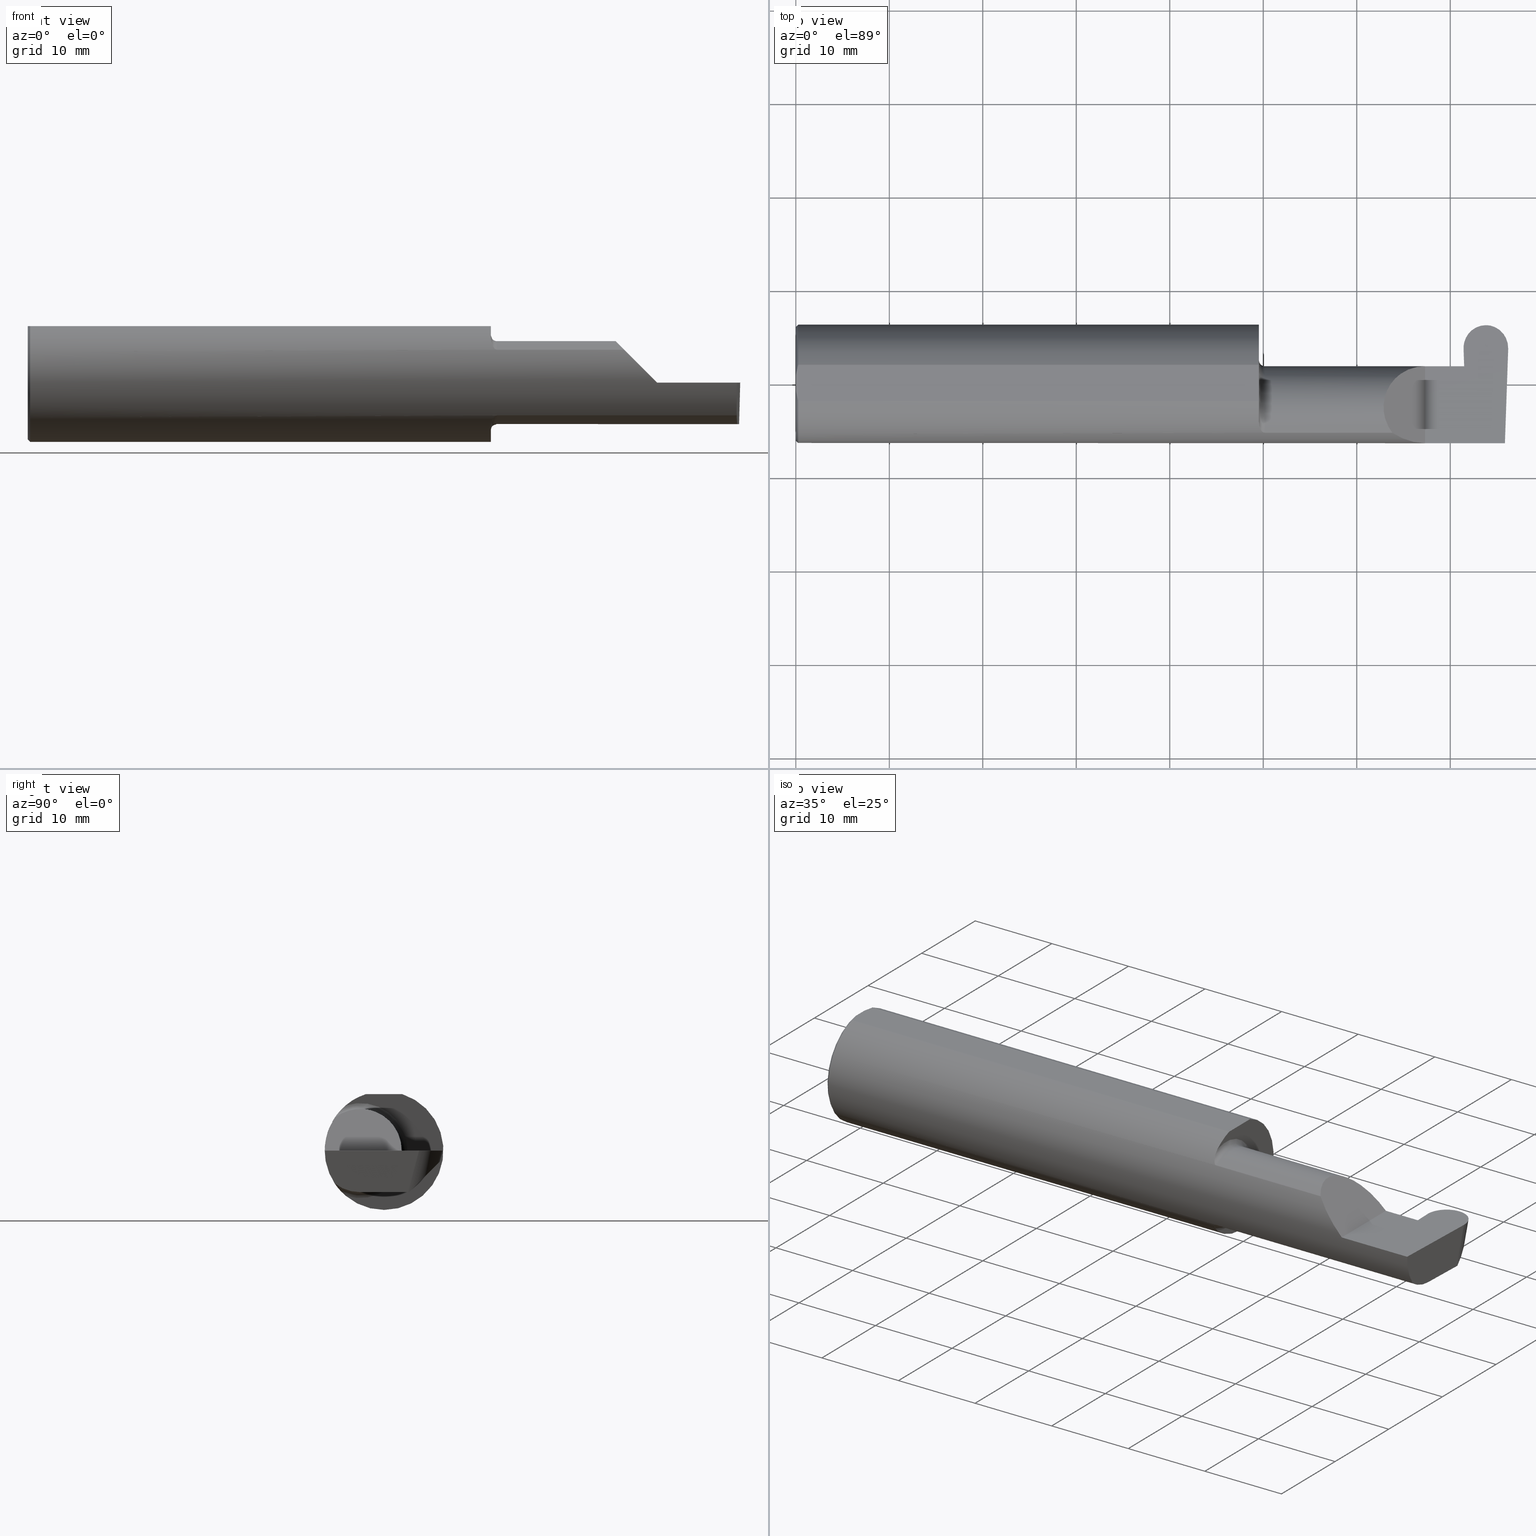
[diagram: canonical four-view strip — front | top / right | iso, engineering-drawing reading convention]
A machine part, canonical four-view strip (front | top / right | iso — engineering-drawing reading convention). The complete STEP part file that produces these views, byte-faithful:
ISO-10303-21;
HEADER;
FILE_DESCRIPTION (( 'STEP AP203' ),
    '1' );
FILE_NAME ('222506-GFR187-16.STEP',
    '2024-06-28T19:24:46',
    ( '' ),
    ( '' ),
    'SwSTEP 2.0',
    'SolidWorks 2024',
    '' );
FILE_SCHEMA (( 'CONFIG_CONTROL_DESIGN' ));
ENDSEC;

DATA;
#1 = ORIENTED_EDGE ( 'NONE', *, *, #420, .F. ) ;
#2 = CARTESIAN_POINT ( 'NONE',  ( 2.809800481473789358, 0.2053034494642216323, 2.322929703798115353E-17 ) ) ;
#3 = PRODUCT_RELATED_PRODUCT_CATEGORY ( 'detail', '', ( #536 ) ) ;
#4 = AXIS2_PLACEMENT_3D ( 'NONE', #278, #549, #441 ) ;
#5 = CARTESIAN_POINT ( 'NONE',  ( 0.000000000000000000, -0.07650098038587520299, 0.2378499999999998671 ) ) ;
#6 = LOCAL_TIME ( 12, 24, 46.00000000000000000, #296 ) ;
#7 = PERSON_AND_ORGANIZATION_ROLE ( 'design_owner' ) ;
#8 = AXIS2_PLACEMENT_3D ( 'NONE', #300, #173, #69 ) ;
#9 = LINE ( 'NONE', #447, #463 ) ;
#10 = DIRECTION ( 'NONE',  ( 1.000000000000000000, 0.000000000000000000, 0.000000000000000000 ) ) ;
#11 = ORIENTED_EDGE ( 'NONE', *, *, #254, .T. ) ;
#12 = DATE_AND_TIME ( #292, #230 ) ;
#13 = CARTESIAN_POINT ( 'NONE',  ( 2.848790630771113275, 0.2471500000000001751, 1.845438088445658575E-17 ) ) ;
#14 = ADVANCED_FACE ( 'NONE', ( #388 ), #372, .T. ) ;
#15 = CARTESIAN_POINT ( 'NONE',  ( 1.975000000000000089, -0.2080850024789290820, -0.1382955322609666915 ) ) ;
#16 = ADVANCED_FACE ( 'NONE', ( #398 ), #72, .T. ) ;
#17 = CARTESIAN_POINT ( 'NONE',  ( 2.903206388851060638, 0.2666316313472230637, 0.07270643800216300412 ) ) ;
#18 = CARTESIAN_POINT ( 'NONE',  ( 1.950000000000000178, -0.1716188362992555061, -0.1820560320165479362 ) ) ;
#19 = VERTEX_POINT ( 'NONE', #341 ) ;
#20 = VECTOR ( 'NONE', #590, 39.37007874015748143 ) ;
#21 = PLANE ( 'NONE',  #339 ) ;
#22 = CARTESIAN_POINT ( 'NONE',  ( 1.956147634408388347, -0.1932733126899460474, -0.1584637047788197695 ) ) ;
#23 = DIRECTION ( 'NONE',  ( 1.000000000000000000, 0.000000000000000000, -0.000000000000000000 ) ) ;
#24 = CARTESIAN_POINT ( 'NONE',  ( 2.988136526189751230, -0.1008500000000000785, -0.1750000000000000722 ) ) ;
#25 = PERSON_AND_ORGANIZATION ( #238, #437 ) ;
#26 = PLANE ( 'NONE',  #147 ) ;
#27 = CARTESIAN_POINT ( 'NONE',  ( 1.950000000000000178, -0.1616050818046604609, -0.1905487340154979614 ) ) ;
#28 = VERTEX_POINT ( 'NONE', #234 ) ;
#29 = DIRECTION ( 'NONE',  ( 0.000000000000000000, 1.000000000000000000, 0.000000000000000000 ) ) ;
#30 = CYLINDRICAL_SURFACE ( 'NONE', #169, 0.2498499999999999888 ) ;
#31 = VERTEX_POINT ( 'NONE', #507 ) ;
#32 = DIRECTION ( 'NONE',  ( 0.02590004391968218217, -0.2587322210431824976, -0.9656017944882975268 ) ) ;
#33 = ADVANCED_FACE ( 'NONE', ( #59 ), #593, .F. ) ;
#34 = LINE ( 'NONE', #475, #42 ) ;
#35 = EDGE_LOOP ( 'NONE', ( #161, #211, #97, #577, #403, #647, #365 ) ) ;
#36 = DIRECTION ( 'NONE',  ( 0.000000000000000000, -1.000000000000000000, 0.000000000000000000 ) ) ;
#37 = EDGE_CURVE ( 'NONE', #691, #153, #449, .T. ) ;
#38 = ORIENTED_EDGE ( 'NONE', *, *, #410, .F. ) ;
#39 = CARTESIAN_POINT ( 'NONE',  ( 1.950367168219774294, -0.1713400252854603845, 0.1819601557798505298 ) ) ;
#40 = DIMENSIONAL_EXPONENTS ( 1.000000000000000000, 0.000000000000000000, 0.000000000000000000, 0.000000000000000000, 0.000000000000000000, 0.000000000000000000, 0.000000000000000000 ) ;
#41 = AXIS2_PLACEMENT_3D ( 'NONE', #51, #54, #656 ) ;
#42 = VECTOR ( 'NONE', #705, 39.37007874015748854 ) ;
#43 = ORIENTED_EDGE ( 'NONE', *, *, #690, .F. ) ;
#44 = EDGE_CURVE ( 'NONE', #155, #28, #186, .T. ) ;
#45 = CARTESIAN_POINT ( 'NONE',  ( 1.952968662030529323, -0.1849684355203378983, 0.1680843977756267538 ) ) ;
#46 = ORIENTED_EDGE ( 'NONE', *, *, #410, .T. ) ;
#47 = DIRECTION ( 'NONE',  ( -0.02590004391968260544, -0.2587322210431824976, -0.9656017944882975268 ) ) ;
#48 = CARTESIAN_POINT ( 'NONE',  ( 2.984795792828450089, -0.2355204011147991883, -0.09701513151466764628 ) ) ;
#49 = ORIENTED_EDGE ( 'NONE', *, *, #96, .T. ) ;
#50 = EDGE_CURVE ( 'NONE', #406, #628, #445, .T. ) ;
#51 = CARTESIAN_POINT ( 'NONE',  ( 0.000000000000000000, 0.000000000000000000, 0.000000000000000000 ) ) ;
#52 = ORIENTED_EDGE ( 'NONE', *, *, #599, .T. ) ;
#53 = DIRECTION ( 'NONE',  ( 0.000000000000000000, 0.000000000000000000, 1.000000000000000000 ) ) ;
#54 = DIRECTION ( 'NONE',  ( -1.000000000000000000, -0.000000000000000000, -0.000000000000000000 ) ) ;
#55 = ADVANCED_FACE ( 'NONE', ( #504 ), #661, .F. ) ;
#56 = VERTEX_POINT ( 'NONE', #512 ) ;
#57 =( BOUNDED_CURVE ( )  B_SPLINE_CURVE ( 3, ( #204, #417, #407, #317 ),
 .UNSPECIFIED., .F., .F. ) 
 B_SPLINE_CURVE_WITH_KNOTS ( ( 4, 4 ),
 ( 4.712388980384687009, 4.718218730468869637 ),
 .UNSPECIFIED. ) 
 CURVE ( )  GEOMETRIC_REPRESENTATION_ITEM ( )  RATIONAL_B_SPLINE_CURVE ( ( 1.000000000000000000, 0.9999971678365016103, 0.9999971678365016103, 1.000000000000000000 ) ) 
 REPRESENTATION_ITEM ( '' )  );
#58 = CARTESIAN_POINT ( 'NONE',  ( 2.906528048425327526, 0.2471499999999999808, 0.000000000000000000 ) ) ;
#59 = FACE_OUTER_BOUND ( 'NONE', #584, .T. ) ;
#60 = CARTESIAN_POINT ( 'NONE',  ( 2.803339167728504666, 0.07414999999999977165, 0.000000000000000000 ) ) ;
#61 = CC_DESIGN_DATE_AND_TIME_ASSIGNMENT ( #12, #675, ( #89 ) ) ;
#62 = CIRCLE ( 'NONE', #41, 0.2398500000000001742 ) ;
#63 = LINE ( 'NONE', #177, #241 ) ;
#64 = CALENDAR_DATE ( 2024, 28, 6 ) ;
#65 = EDGE_CURVE ( 'NONE', #253, #423, #337, .T. ) ;
#66 = AXIS2_PLACEMENT_3D ( 'NONE', #134, #10, #563 ) ;
#67 = DIRECTION ( 'NONE',  ( -0.02590004391968260891, -0.2587322210431824421, -0.9656017944882975268 ) ) ;
#68 = MANIFOLD_SOLID_BREP ( 'Radii', #198 ) ;
#69 = DIRECTION ( 'NONE',  ( -0.03489949670249512664, -0.9993908270190959842, 0.000000000000000000 ) ) ;
#70 = APPROVAL_DATE_TIME ( #400, #135 ) ;
#71 = DIRECTION ( 'NONE',  ( -1.000000000000000000, -1.981473217010842137E-17, -0.000000000000000000 ) ) ;
#72 = PLANE ( 'NONE',  #503 ) ;
#73 = DATE_TIME_ROLE ( 'creation_date' ) ;
#74 = ADVANCED_FACE ( 'NONE', ( #180 ), #560, .F. ) ;
#75 = CARTESIAN_POINT ( 'NONE',  ( 2.959374149763076556, 0.2343807619371274797, -0.04644357521104084535 ) ) ;
#76 = DIRECTION ( 'NONE',  ( 0.000000000000000000, -0.7071067811865514585, 0.7071067811865435759 ) ) ;
#77 = AXIS2_PLACEMENT_3D ( 'NONE', #175, #648, #554 ) ;
#78 = CC_DESIGN_APPROVAL ( #408, ( #127 ) ) ;
#79 = DIRECTION ( 'NONE',  ( -0.7071067811865511255, 0.000000000000000000, 0.7071067811865439090 ) ) ;
#80 = CARTESIAN_POINT ( 'NONE',  ( 2.985032866776429650, -0.2080850024789289987, -0.1382955322609668025 ) ) ;
#81 = ORIENTED_EDGE ( 'NONE', *, *, #242, .F. ) ;
#82 = FACE_OUTER_BOUND ( 'NONE', #465, .T. ) ;
#83 = CARTESIAN_POINT ( 'NONE',  ( 2.814380460850576249, 0.07414999999999977165, 0.000000000000000000 ) ) ;
#84 = ORIENTED_EDGE ( 'NONE', *, *, #141, .F. ) ;
#85 = DIRECTION ( 'NONE',  ( -1.000000000000000000, -1.981473217010842137E-17, -0.000000000000000000 ) ) ;
#86 = ORIENTED_EDGE ( 'NONE', *, *, #676, .F. ) ;
#87 = AXIS2_PLACEMENT_3D ( 'NONE', #352, #682, #29 ) ;
#88 = CARTESIAN_POINT ( 'NONE',  ( 4.499279347985562423E-32, -0.2498499999999999610, 3.673940397442054938E-16 ) ) ;
#89 = SECURITY_CLASSIFICATION ( '', '', #446 ) ;
#90 = CARTESIAN_POINT ( 'NONE',  ( 2.811741978320692059, 0.1497062540083303195, 0.000000000000000000 ) ) ;
#91 = ORIENTED_EDGE ( 'NONE', *, *, #497, .F. ) ;
#92 = APPLICATION_CONTEXT ( 'configuration controlled 3d designs of mechanical parts and assemblies' ) ;
#93 = DIRECTION ( 'NONE',  ( 0.000000000000000000, -1.000000000000000000, 1.223176342469858371E-16 ) ) ;
#94 = EDGE_LOOP ( 'NONE', ( #309, #323, #281, #703, #331, #223 ) ) ;
#95 = LINE ( 'NONE', #88, #20 ) ;
#96 = EDGE_CURVE ( 'NONE', #644, #452, #131, .T. ) ;
#97 = ORIENTED_EDGE ( 'NONE', *, *, #413, .T. ) ;
#98 = CARTESIAN_POINT ( 'NONE',  ( 1.950000000000000178, -0.1008500000000000368, 0.000000000000000000 ) ) ;
#99 = AXIS2_PLACEMENT_3D ( 'NONE', #677, #71, #663 ) ;
#100 = AXIS2_PLACEMENT_3D ( 'NONE', #384, #76, #395 ) ;
#101 = ORIENTED_EDGE ( 'NONE', *, *, #469, .T. ) ;
#102 = CARTESIAN_POINT ( 'NONE',  ( 2.824252866266283135, -0.1210320425578234466, -0.1750000000000000722 ) ) ;
#103 = DIRECTION ( 'NONE',  ( 0.000000000000000000, 0.000000000000000000, 1.000000000000000000 ) ) ;
#104 = EDGE_CURVE ( 'NONE', #452, #19, #63, .T. ) ;
#105 = ORIENTED_EDGE ( 'NONE', *, *, #494, .F. ) ;
#106 = LINE ( 'NONE', #436, #435 ) ;
#107 = ORIENTED_EDGE ( 'NONE', *, *, #50, .F. ) ;
#108 = CARTESIAN_POINT ( 'NONE',  ( 2.816530679450678587, 0.1001024549918554940, -0.1750000000000001277 ) ) ;
#109 =( BOUNDED_CURVE ( )  B_SPLINE_CURVE ( 3, ( #80, #48, #405, #678 ),
 .UNSPECIFIED., .F., .T. ) 
 B_SPLINE_CURVE_WITH_KNOTS ( ( 4, 4 ),
 ( 6.160376845738953833, 6.746954780470612256 ),
 .UNSPECIFIED. ) 
 CURVE ( )  GEOMETRIC_REPRESENTATION_ITEM ( )  RATIONAL_B_SPLINE_CURVE ( ( 1.000000000000000000, 0.9715321379117538569, 0.9715321379117538569, 1.000000000000000000 ) ) 
 REPRESENTATION_ITEM ( '' )  );
#110 = EDGE_CURVE ( 'NONE', #427, #227, #702, .T. ) ;
#111 = CARTESIAN_POINT ( 'NONE',  ( 2.962893989228886138, 0.2471500000000001196, -6.982753567311735255E-18 ) ) ;
#112 = AXIS2_PLACEMENT_3D ( 'NONE', #524, #520, #409 ) ;
#113 = ORIENTED_EDGE ( 'NONE', *, *, #114, .T. ) ;
#114 = EDGE_CURVE ( 'NONE', #658, #592, #567, .T. ) ;
#115 = DIRECTION ( 'NONE',  ( -1.981473217010842137E-17, 1.000000000000000000, 0.000000000000000000 ) ) ;
#116 = DESIGN_CONTEXT ( 'detailed design', #92, 'design' ) ;
#117 = CARTESIAN_POINT ( 'NONE',  ( 0.000000000000000000, 0.2498499999999998500, 0.2378499999999998671 ) ) ;
#118 = ORIENTED_EDGE ( 'NONE', *, *, #65, .F. ) ;
#119 = DIRECTION ( 'NONE',  ( 1.000000000000000000, -0.000000000000000000, -0.000000000000000000 ) ) ;
#120 = EDGE_CURVE ( 'NONE', #363, #56, #523, .T. ) ;
#121 = ADVANCED_FACE ( 'NONE', ( #205 ), #255, .F. ) ;
#122 = DIRECTION ( 'NONE',  ( 1.000000000000000000, 1.981473217010842137E-17, 0.000000000000000000 ) ) ;
#123 = DIRECTION ( 'NONE',  ( 1.000000000000000000, 0.000000000000000000, 0.000000000000000000 ) ) ;
#124 = CARTESIAN_POINT ( 'NONE',  ( 2.817597862438286249, -0.1008500000000000368, -0.1750000000000000444 ) ) ;
#125 = AXIS2_PLACEMENT_3D ( 'NONE', #632, #47, #156 ) ;
#126 = DIRECTION ( 'NONE',  ( 1.981473217010842445E-17, -1.000000000000000000, 0.000000000000000000 ) ) ;
#127 = PRODUCT_DEFINITION_FORMATION_WITH_SPECIFIED_SOURCE ( 'ANY', '', #536, .NOT_KNOWN. ) ;
#128 = CARTESIAN_POINT ( 'NONE',  ( 1.962579853086619197, -0.2024300470081734915, -0.1464774911482684683 ) ) ;
#129 = PERSON_AND_ORGANIZATION_ROLE ( 'creator' ) ;
#130 = DIRECTION ( 'NONE',  ( 0.000000000000000000, 0.000000000000000000, -1.000000000000000000 ) ) ;
#131 = LINE ( 'NONE', #610, #570 ) ;
#132 = CALENDAR_DATE ( 2024, 28, 6 ) ;
#133 = CARTESIAN_POINT ( 'NONE',  ( 2.803232562456845933, 0.07404339472834127467, -0.006107411922952280664 ) ) ;
#134 = CARTESIAN_POINT ( 'NONE',  ( 0.000000000000000000, 0.000000000000000000, 0.000000000000000000 ) ) ;
#135 = APPROVAL ( #183, 'UNSPECIFIED' ) ;
#136 = VECTOR ( 'NONE', #450, 39.37007874015748854 ) ;
#137 = DIRECTION ( 'NONE',  ( -1.224646799147351975E-16, 0.000000000000000000, -1.000000000000000000 ) ) ;
#138 = DIRECTION ( 'NONE',  ( 1.000000000000000000, 1.981473217010842137E-17, 0.000000000000000000 ) ) ;
#139 = ORIENTED_EDGE ( 'NONE', *, *, #585, .F. ) ;
#140 = CARTESIAN_POINT ( 'NONE',  ( 0.002005502345409059580, 0.04647171987093979412, 0.2378499999999998671 ) ) ;
#141 = EDGE_CURVE ( 'NONE', #265, #687, #355, .T. ) ;
#142 = ORIENTED_EDGE ( 'NONE', *, *, #444, .T. ) ;
#143 = CYLINDRICAL_SURFACE ( 'NONE', #229, 0.1750000000000000444 ) ;
#144 = EDGE_CURVE ( 'NONE', #393, #533, #498, .T. ) ;
#145 = FACE_OUTER_BOUND ( 'NONE', #580, .T. ) ;
#146 = ORIENTED_EDGE ( 'NONE', *, *, #247, .T. ) ;
#147 = AXIS2_PLACEMENT_3D ( 'NONE', #562, #569, #23 ) ;
#148 = FACE_OUTER_BOUND ( 'NONE', #666, .T. ) ;
#149 = LOCAL_TIME ( 12, 24, 46.00000000000000000, #424 ) ;
#150 = CARTESIAN_POINT ( 'NONE',  ( 2.816292363343102068, 0.07056399972053260805, -0.1057442486376092144 ) ) ;
#151 = ORIENTED_EDGE ( 'NONE', *, *, #199, .F. ) ;
#152 = DIRECTION ( 'NONE',  ( 0.000000000000000000, 0.9659258262890682012, -0.2588190451025210725 ) ) ;
#153 = VERTEX_POINT ( 'NONE', #425 ) ;
#154 = CARTESIAN_POINT ( 'NONE',  ( 1.950000000000000178, -0.1616050818046604609, 0.1905487340154979614 ) ) ;
#155 = VERTEX_POINT ( 'NONE', #459 ) ;
#156 = DIRECTION ( 'NONE',  ( 0.000000000000000000, 0.9659258262890682012, -0.2588190451025210725 ) ) ;
#157 = VECTOR ( 'NONE', #164, 39.37007874015748854 ) ;
#158 = ORIENTED_EDGE ( 'NONE', *, *, #297, .T. ) ;
#159 = CALENDAR_DATE ( 2024, 28, 6 ) ;
#160 = CARTESIAN_POINT ( 'NONE',  ( 2.905842309999999706, 0.2348220781727736184, -0.04600225897539471365 ) ) ;
#161 = ORIENTED_EDGE ( 'NONE', *, *, #624, .T. ) ;
#162 = EDGE_CURVE ( 'NONE', #378, #485, #343, .T. ) ;
#163 = UNCERTAINTY_MEASURE_WITH_UNIT (LENGTH_MEASURE( 1.000000000000000082E-05 ), #611, 'distance_accuracy_value', 'NONE');
#164 = DIRECTION ( 'NONE',  ( -0.0003154085283454421441, 0.9999999502587288980, -1.223178646569383192E-16 ) ) ;
#165 = EDGE_CURVE ( 'NONE', #533, #525, #646, .T. ) ;
#166 = ORIENTED_EDGE ( 'NONE', *, *, #104, .T. ) ;
#167 = CARTESIAN_POINT ( 'NONE',  ( 2.600434159100402987, -0.2498499999999999610, 0.04956584089959713973 ) ) ;
#168 = CARTESIAN_POINT ( 'NONE',  ( 2.995191146414767136, 0.1058243371481696476, -0.1750000000000001277 ) ) ;
#169 = AXIS2_PLACEMENT_3D ( 'NONE', #595, #202, #103 ) ;
#170 = ORIENTED_EDGE ( 'NONE', *, *, #280, .F. ) ;
#171 = PLANE ( 'NONE',  #77 ) ;
#172 = LINE ( 'NONE', #559, #299 ) ;
#173 = DIRECTION ( 'NONE',  ( -0.9992386149554828290, 0.03489418134010782713, 0.01745240643728358798 ) ) ;
#174 = ORIENTED_EDGE ( 'NONE', *, *, #367, .T. ) ;
#175 = CARTESIAN_POINT ( 'NONE',  ( 0.000000000000000000, 0.000000000000000000, 0.000000000000000000 ) ) ;
#176 = CARTESIAN_POINT ( 'NONE',  ( 3.001884138526210499, 0.2053034494642216323, -1.175766972083629841E-17 ) ) ;
#177 = CARTESIAN_POINT ( 'NONE',  ( 2.999942641679308242, 0.1497062540083303195, 0.000000000000000000 ) ) ;
#178 = DATE_AND_TIME ( #188, #623 ) ;
#179 = AXIS2_PLACEMENT_3D ( 'NONE', #655, #659, #385 ) ;
#180 = FACE_OUTER_BOUND ( 'NONE', #492, .T. ) ;
#181 = AXIS2_PLACEMENT_3D ( 'NONE', #224, #53, #123 ) ;
#182 = VERTEX_POINT ( 'NONE', #571 ) ;
#183 = APPROVAL_STATUS ( 'not_yet_approved' ) ;
#184 = CARTESIAN_POINT ( 'NONE',  ( 2.905842309999999706, 0.2348220781727736184, -0.04600225897539471365 ) ) ;
#185 =( BOUNDED_CURVE ( )  B_SPLINE_CURVE ( 3, ( #282, #13, #2, #541 ),
 .UNSPECIFIED., .F., .T. ) 
 B_SPLINE_CURVE_WITH_KNOTS ( ( 4, 4 ),
 ( 3.045231736429744540, 4.645220385064936508 ),
 .UNSPECIFIED. ) 
 CURVE ( )  GEOMETRIC_REPRESENTATION_ITEM ( )  RATIONAL_B_SPLINE_CURVE ( ( 1.000000000000000000, 0.7978071872141907495, 0.7978071872141907495, 1.000000000000000000 ) ) 
 REPRESENTATION_ITEM ( '' )  );
#186 = LINE ( 'NONE', #509, #288 ) ;
#187 = EDGE_LOOP ( 'NONE', ( #653, #174, #201, #203, #118, #589, #244, #480, #495 ) ) ;
#188 = CALENDAR_DATE ( 2024, 28, 6 ) ;
#189 = EDGE_CURVE ( 'NONE', #363, #19, #109, .T. ) ;
#190 = DIRECTION ( 'NONE',  ( -1.000000000000000000, -0.000000000000000000, -0.000000000000000000 ) ) ;
#191 = CARTESIAN_POINT ( 'NONE',  ( 1.950000000000000178, -0.1616050818046604609, -0.1905487340154979614 ) ) ;
#192 = VERTEX_POINT ( 'NONE', #83 ) ;
#193 = PLANE ( 'NONE',  #215 ) ;
#194 = CARTESIAN_POINT ( 'NONE',  ( 2.817597862438286249, -0.1008500000000000368, -0.1750000000000000444 ) ) ;
#195 = VECTOR ( 'NONE', #228, 39.37007874015748143 ) ;
#196 = ORIENTED_EDGE ( 'NONE', *, *, #114, .F. ) ;
#197 = DIRECTION ( 'NONE',  ( 0.000000000000000000, 0.000000000000000000, -1.000000000000000000 ) ) ;
#198 = CLOSED_SHELL ( 'NONE', ( #566, #598, #218, #474, #544, #491, #694, #14, #33, #551, #16, #643, #701, #74, #226, #55, #121, #617, #576 ) ) ;
#199 = EDGE_CURVE ( 'NONE', #406, #650, #601, .T. ) ;
#200 = CARTESIAN_POINT ( 'NONE',  ( 0.000000000000000000, 0.03090954545120574992, 0.2378499999999998671 ) ) ;
#201 = ORIENTED_EDGE ( 'NONE', *, *, #517, .F. ) ;
#202 = DIRECTION ( 'NONE',  ( -1.000000000000000000, -0.000000000000000000, -0.000000000000000000 ) ) ;
#203 = ORIENTED_EDGE ( 'NONE', *, *, #391, .F. ) ;
#204 = CARTESIAN_POINT ( 'NONE',  ( 2.905842309999999706, 0.2402997171823388067, -0.02556560352172764644 ) ) ;
#205 = FACE_OUTER_BOUND ( 'NONE', #257, .T. ) ;
#206 = ORIENTED_EDGE ( 'NONE', *, *, #50, .T. ) ;
#207 = VECTOR ( 'NONE', #330, 39.37007874015748143 ) ;
#208 = DIRECTION ( 'NONE',  ( -0.000000000000000000, 1.223176342469858371E-16, 1.000000000000000000 ) ) ;
#209 = ORIENTED_EDGE ( 'NONE', *, *, #494, .T. ) ;
#210 = FACE_OUTER_BOUND ( 'NONE', #35, .T. ) ;
#211 = ORIENTED_EDGE ( 'NONE', *, *, #37, .T. ) ;
#212 = CARTESIAN_POINT ( 'NONE',  ( 1.975000000000000089, -0.2080850024789290820, 0.1382955322609667193 ) ) ;
#213 = EDGE_LOOP ( 'NONE', ( #356, #86, #510 ) ) ;
#214 = CARTESIAN_POINT ( 'NONE',  ( 2.650000000000000355, -0.2498499999999999610, 4.286263797015729199E-17 ) ) ;
#215 = AXIS2_PLACEMENT_3D ( 'NONE', #455, #668, #79 ) ;
#216 = CARTESIAN_POINT ( 'NONE',  ( 2.904576945698209567, 0.2276591781451734187, -0.07274073744348660830 ) ) ;
#217 = LOCAL_TIME ( 12, 24, 46.00000000000000000, #245 ) ;
#218 = ADVANCED_FACE ( 'NONE', ( #686 ), #30, .T. ) ;
#219 = EDGE_LOOP ( 'NONE', ( #295, #43, #209, #314 ) ) ;
#220 = APPROVAL_DATE_TIME ( #324, #538 ) ;
#221 = CARTESIAN_POINT ( 'NONE',  ( 2.814380460850576249, 0.07414999999999977165, 0.000000000000000000 ) ) ;
#222 = EDGE_CURVE ( 'NONE', #525, #423, #442, .T. ) ;
#223 = ORIENTED_EDGE ( 'NONE', *, *, #297, .F. ) ;
#224 = CARTESIAN_POINT ( 'NONE',  ( 0.000000000000000000, 0.000000000000000000, 0.000000000000000000 ) ) ;
#225 = LINE ( 'NONE', #432, #529 ) ;
#226 = ADVANCED_FACE ( 'NONE', ( #145 ), #583, .F. ) ;
#227 = VERTEX_POINT ( 'NONE', #27 ) ;
#228 = DIRECTION ( 'NONE',  ( -1.000000000000000000, -0.000000000000000000, -0.000000000000000000 ) ) ;
#229 = AXIS2_PLACEMENT_3D ( 'NONE', #98, #697, #36 ) ;
#230 = LOCAL_TIME ( 12, 24, 46.00000000000000000, #453 ) ;
#231 = DIRECTION ( 'NONE',  ( 1.000000000000000000, 1.981473217010842137E-17, 0.000000000000000000 ) ) ;
#232 = CARTESIAN_POINT ( 'NONE',  ( 0.000000000000000000, -0.03090954545120560767, 0.2378499999999998671 ) ) ;
#233 = CARTESIAN_POINT ( 'NONE',  ( 2.817543629401487948, 0.07109536363756167876, -0.1750000000000000722 ) ) ;
#234 = CARTESIAN_POINT ( 'NONE',  ( 2.906528048425327526, 0.2471499999999999808, 0.000000000000000000 ) ) ;
#235 = PERSON_AND_ORGANIZATION ( #238, #437 ) ;
#236 = EDGE_CURVE ( 'NONE', #644, #56, #34, .T. ) ;
#237 = CARTESIAN_POINT ( 'NONE',  ( 2.815677863111235357, 0.1814922884362608069, -0.09933204871190810803 ) ) ;
#238 = PERSON ( 'UNSPECIFIED', 'UNSPECIFIED', 'UNSPECIFIED', ('UNSPECIFIED'), ('UNSPECIFIED'), ('UNSPECIFIED') ) ;
#239 = CARTESIAN_POINT ( 'NONE',  ( 1.973318040126429418, -0.2080850024789289987, -0.1382955322609667748 ) ) ;
#240 = CARTESIAN_POINT ( 'NONE',  ( 2.482823929317965028, 0.07415000000000000757, 0.1671760706820337172 ) ) ;
#241 = VECTOR ( 'NONE', #287, 39.37007874015748143 ) ;
#242 = EDGE_CURVE ( 'NONE', #227, #373, #359, .T. ) ;
#243 = DIRECTION ( 'NONE',  ( -1.000000000000000000, -1.981473217010842137E-17, -0.000000000000000000 ) ) ;
#244 = ORIENTED_EDGE ( 'NONE', *, *, #599, .F. ) ;
#245 = COORDINATED_UNIVERSAL_TIME_OFFSET ( 8, 0, .BEHIND. ) ;
#246 = FACE_OUTER_BOUND ( 'NONE', #213, .T. ) ;
#247 = EDGE_CURVE ( 'NONE', #28, #182, #487, .T. ) ;
#248 = CARTESIAN_POINT ( 'NONE',  ( 2.816493473585234053, 0.1058243371481696476, -0.1750000000000001277 ) ) ;
#249 = ORIENTED_EDGE ( 'NONE', *, *, #236, .F. ) ;
#250 = APPROVAL_ROLE ( '' ) ;
#251 = CARTESIAN_POINT ( 'NONE',  ( 2.811741978320692059, 0.1497062540083303195, 0.000000000000000000 ) ) ;
#252 = CARTESIAN_POINT ( 'NONE',  ( 2.393342309999999973, -0.2080850024789289987, 0.1382955322609668025 ) ) ;
#253 = VERTEX_POINT ( 'NONE', #443 ) ;
#254 = EDGE_CURVE ( 'NONE', #153, #542, #482, .T. ) ;
#255 = PLANE ( 'NONE',  #112 ) ;
#256 = CIRCLE ( 'NONE', #351, 0.1999999999999999556 ) ;
#257 = EDGE_LOOP ( 'NONE', ( #268, #433, #439 ) ) ;
#258 = CARTESIAN_POINT ( 'NONE',  ( 2.995191146414767136, 0.1058243371481696476, -0.1750000000000001277 ) ) ;
#259 = CARTESIAN_POINT ( 'NONE',  ( 0.000000000000000000, -0.03090954545120560767, 0.2378499999999998671 ) ) ;
#260 = ORIENTED_EDGE ( 'NONE', *, *, #624, .F. ) ;
#261 = CYLINDRICAL_SURFACE ( 'NONE', #681, 0.09400000000000000022 ) ;
#262 = ORIENTED_EDGE ( 'NONE', *, *, #517, .T. ) ;
#263 =( BOUNDED_CURVE ( )  B_SPLINE_CURVE ( 3, ( #603, #176, #111, #58 ),
 .UNSPECIFIED., .F., .T. ) 
 B_SPLINE_CURVE_WITH_KNOTS ( ( 4, 4 ),
 ( 1.637964922114649946, 3.237953570749842580 ),
 .UNSPECIFIED. ) 
 CURVE ( )  GEOMETRIC_REPRESENTATION_ITEM ( )  RATIONAL_B_SPLINE_CURVE ( ( 1.000000000000000000, 0.7978071872141906384, 0.7978071872141906384, 1.000000000000000000 ) ) 
 REPRESENTATION_ITEM ( '' )  );
#264 = PLANE ( 'NONE',  #622 ) ;
#265 = VERTEX_POINT ( 'NONE', #279 ) ;
#266 = VECTOR ( 'NONE', #67, 39.37007874015748854 ) ;
#267 = CARTESIAN_POINT ( 'NONE',  ( 1.967647060162629025, -0.2062109266231181848, 0.1410799729252291135 ) ) ;
#268 = ORIENTED_EDGE ( 'NONE', *, *, #144, .T. ) ;
#269 = CARTESIAN_POINT ( 'NONE',  ( 1.951849548162864156, -0.1805300287242674884, 0.1728462070311779786 ) ) ;
#270 = ORIENTED_EDGE ( 'NONE', *, *, #120, .T. ) ;
#271 = PERSON_AND_ORGANIZATION ( #238, #437 ) ;
#272 = CARTESIAN_POINT ( 'NONE',  ( 0.001983148254845701515, -0.04629825796642599717, 0.2378499999999998671 ) ) ;
#273 = EDGE_LOOP ( 'NONE', ( #249, #49, #166, #670, #270 ) ) ;
#274 = CARTESIAN_POINT ( 'NONE',  ( 2.552984868485331571, -0.2355204011147991605, 0.09701513151466779894 ) ) ;
#275 = AXIS2_PLACEMENT_3D ( 'NONE', #350, #458, #130 ) ;
#276 = LINE ( 'NONE', #550, #390 ) ;
#277 = ORIENTED_EDGE ( 'NONE', *, *, #431, .F. ) ;
#278 = CARTESIAN_POINT ( 'NONE',  ( -0.002039370078740339320, 0.2471499999999999808, 0.000000000000000000 ) ) ;
#279 = CARTESIAN_POINT ( 'NONE',  ( 1.975000000000000089, -0.2080850024789290820, 0.1382955322609667193 ) ) ;
#280 = EDGE_CURVE ( 'NONE', #373, #485, #496, .T. ) ;
#281 = ORIENTED_EDGE ( 'NONE', *, *, #552, .T. ) ;
#282 = CARTESIAN_POINT ( 'NONE',  ( 2.905156571574672331, 0.2471499999999999808, 0.000000000000000000 ) ) ;
#283 = CARTESIAN_POINT ( 'NONE',  ( 2.816464084461495876, 0.1020094859694684469, -0.1750000000000001554 ) ) ;
#284 = LINE ( 'NONE', #379, #308 ) ;
#285 = CARTESIAN_POINT ( 'NONE',  ( 1.975000000000000089, -0.2080850024789290820, -0.1382955322609666915 ) ) ;
#286 = AXIS2_PLACEMENT_3D ( 'NONE', #578, #190, #197 ) ;
#287 = DIRECTION ( 'NONE',  ( -0.03489949670249513358, -0.9993908270190959842, 0.000000000000000000 ) ) ;
#288 = VECTOR ( 'NONE', #448, 39.37007874015748143 ) ;
#289 = ORIENTED_EDGE ( 'NONE', *, *, #391, .T. ) ;
#290 = CARTESIAN_POINT ( 'NONE',  ( 2.985032866776429650, -0.2080850024789289987, -0.1382955322609668025 ) ) ;
#291 = CARTESIAN_POINT ( 'NONE',  ( 1.971700027347579764, -0.2077785947292768165, -0.1387580622202825853 ) ) ;
#292 = CALENDAR_DATE ( 2024, 28, 6 ) ;
#293 = EDGE_CURVE ( 'NONE', #533, #192, #106, .T. ) ;
#294 = CARTESIAN_POINT ( 'NONE',  ( 2.816451678931664482, 0.1039173297714279937, -0.1750000000000001554 ) ) ;
#295 = ORIENTED_EDGE ( 'NONE', *, *, #242, .T. ) ;
#296 = COORDINATED_UNIVERSAL_TIME_OFFSET ( 8, 0, .BEHIND. ) ;
#297 = EDGE_CURVE ( 'NONE', #31, #691, #276, .T. ) ;
#298 = CARTESIAN_POINT ( 'NONE',  ( 2.905842309999999706, 0.2348220781727736184, -0.04600225897539471365 ) ) ;
#299 = VECTOR ( 'NONE', #119, 39.37007874015748143 ) ;
#300 = CARTESIAN_POINT ( 'NONE',  ( 2.999942641679308242, 0.1497062540083303195, 0.000000000000000000 ) ) ;
#301 = VERTEX_POINT ( 'NONE', #493 ) ;
#302 = CARTESIAN_POINT ( 'NONE',  ( 0.000000000000000000, 0.000000000000000000, -0.2398500000000001742 ) ) ;
#303 = ORIENTED_EDGE ( 'NONE', *, *, #110, .T. ) ;
#304 = CARTESIAN_POINT ( 'NONE',  ( 2.409263745716142768, -0.07597241004310673063, 0.2407362542838552832 ) ) ;
#305 = CARTESIAN_POINT ( 'NONE',  ( 2.803303632637951459, 0.07411446490944693932, -0.002035803974317428044 ) ) ;
#306 = ORIENTED_EDGE ( 'NONE', *, *, #247, .F. ) ;
#307 = CARTESIAN_POINT ( 'NONE',  ( 2.814490853840988738, 0.07404339472834124691, -0.006107411922953761250 ) ) ;
#308 = VECTOR ( 'NONE', #115, 39.37007874015748143 ) ;
#309 = ORIENTED_EDGE ( 'NONE', *, *, #367, .F. ) ;
#310 = FACE_OUTER_BOUND ( 'NONE', #430, .T. ) ;
#311 = DIRECTION ( 'NONE',  ( -0.03489949670249350294, 0.9993908270190959842, 0.000000000000000000 ) ) ;
#312 = ORIENTED_EDGE ( 'NONE', *, *, #120, .F. ) ;
#313 = CARTESIAN_POINT ( 'NONE',  ( 2.995191146414767136, 0.1058243371481696476, -0.1750000000000001277 ) ) ;
#314 = ORIENTED_EDGE ( 'NONE', *, *, #420, .T. ) ;
#315 = FACE_OUTER_BOUND ( 'NONE', #530, .T. ) ;
#316 = VERTEX_POINT ( 'NONE', #233 ) ;
#317 = CARTESIAN_POINT ( 'NONE',  ( 2.905842309999999706, 0.2348220781727736184, -0.04600225897539471365 ) ) ;
#318 = VECTOR ( 'NONE', #438, 39.37007874015748143 ) ;
#319 = ORIENTED_EDGE ( 'NONE', *, *, #327, .F. ) ;
#320 = EDGE_CURVE ( 'NONE', #393, #316, #383, .T. ) ;
#321 = CARTESIAN_POINT ( 'NONE',  ( 2.814380460850576249, 0.07414999999999977165, 0.000000000000000000 ) ) ;
#322 = DIRECTION ( 'NONE',  ( 1.000000000000000000, 1.981473217010842137E-17, 0.000000000000000000 ) ) ;
#323 = ORIENTED_EDGE ( 'NONE', *, *, #501, .F. ) ;
#324 = DATE_AND_TIME ( #159, #149 ) ;
#325 = DIRECTION ( 'NONE',  ( -0.01806954526206908107, 0.01744955702544859211, 0.9996844524616943506 ) ) ;
#326 = ORIENTED_EDGE ( 'NONE', *, *, #65, .T. ) ;
#327 = EDGE_CURVE ( 'NONE', #56, #393, #9, .T. ) ;
#328 =( LENGTH_UNIT ( ) NAMED_UNIT ( * ) SI_UNIT ( $, .METRE. ) );
#329 = VECTOR ( 'NONE', #660, 39.37007874015748143 ) ;
#330 = DIRECTION ( 'NONE',  ( 1.000000000000000000, -0.000000000000000000, -0.000000000000000000 ) ) ;
#331 = ORIENTED_EDGE ( 'NONE', *, *, #37, .F. ) ;
#332 = PLANE ( 'NONE',  #4 ) ;
#333 = CARTESIAN_POINT ( 'NONE',  ( 0.000000000000000000, 0.07650098038587520299, 0.2378499999999998671 ) ) ;
#334 = ORIENTED_EDGE ( 'NONE', *, *, #478, .T. ) ;
#335 = CARTESIAN_POINT ( 'NONE',  ( 2.995153940549321714, 0.1001024549918553413, -0.1750000000000001277 ) ) ;
#336 = CARTESIAN_POINT ( 'NONE',  ( 1.950000000000000178, -0.1008500000000000368, 0.000000000000000000 ) ) ;
#337 = LINE ( 'NONE', #556, #404 ) ;
#338 = CARTESIAN_POINT ( 'NONE',  ( 2.511704467739031887, -0.2080850024789288877, 0.1382955322609669413 ) ) ;
#339 = AXIS2_PLACEMENT_3D ( 'NONE', #401, #137, #572 ) ;
#340 = APPROVAL_PERSON_ORGANIZATION ( #505, #135, #614 ) ;
#341 = CARTESIAN_POINT ( 'NONE',  ( 2.985989829834099218, -0.2498499999999999888, 0.000000000000000000 ) ) ;
#342 = FACE_OUTER_BOUND ( 'NONE', #460, .T. ) ;
#343 = B_SPLINE_CURVE_WITH_KNOTS ( 'NONE', 3,
 ( #200, #140, #371, #579 ),
 .UNSPECIFIED., .F., .F.,
 ( 4, 4 ),
 ( 0.01593449416844770414, 0.01712021724825603733 ),
 .UNSPECIFIED. ) ;
#344 = CARTESIAN_POINT ( 'NONE',  ( 1.958176740666625948, -0.1972027065478073882, -0.1535263573771913914 ) ) ;
#345 = EDGE_CURVE ( 'NONE', #650, #378, #609, .T. ) ;
#346 = PERSON_AND_ORGANIZATION ( #238, #437 ) ;
#347 = CARTESIAN_POINT ( 'NONE',  ( 2.996006756888764500, 0.1814922884362608346, -0.09933204871190806640 ) ) ;
#348 = CARTESIAN_POINT ( 'NONE',  ( 1.964302603425052585, -0.2041009206016213273, -0.1441313430770039539 ) ) ;
#349 = APPROVAL_DATE_TIME ( #389, #408 ) ;
#350 = CARTESIAN_POINT ( 'NONE',  ( 0.009999999999999856226, 0.000000000000000000, 0.000000000000000000 ) ) ;
#351 = AXIS2_PLACEMENT_3D ( 'NONE', #336, #555, #490 ) ;
#352 = CARTESIAN_POINT ( 'NONE',  ( 1.950000000000000178, 0.000000000000000000, 0.000000000000000000 ) ) ;
#353 = CARTESIAN_POINT ( 'NONE',  ( 2.985694921565461790, -0.1771157075472508668, -0.1623092683844332140 ) ) ;
#354 = ORIENTED_EDGE ( 'NONE', *, *, #199, .T. ) ;
#355 = LINE ( 'NONE', #252, #415 ) ;
#356 = ORIENTED_EDGE ( 'NONE', *, *, #444, .F. ) ;
#357 = CARTESIAN_POINT ( 'NONE',  ( 2.814380460850576249, 0.07414999999999977165, 9.645561665750316631E-21 ) ) ;
#358 = CARTESIAN_POINT ( 'NONE',  ( 0.005459900170181723050, -0.06167314502012866823, 0.2378499999999998671 ) ) ;
#359 = CIRCLE ( 'NONE', #633, 0.2498499999999999888 ) ;
#360 = ORIENTED_EDGE ( 'NONE', *, *, #280, .T. ) ;
#361 = EDGE_CURVE ( 'NONE', #301, #253, #652, .T. ) ;
#362 = CARTESIAN_POINT ( 'NONE',  ( 1.958182335268384255, -0.1972192205116130859, 0.1535061413537209263 ) ) ;
#363 = VERTEX_POINT ( 'NONE', #290 ) ;
#364 = CARTESIAN_POINT ( 'NONE',  ( 1.964343523383979884, -0.2041337200786084161, 0.1440846171672513221 ) ) ;
#365 = ORIENTED_EDGE ( 'NONE', *, *, #320, .T. ) ;
#366 = CARTESIAN_POINT ( 'NONE',  ( 1.962616400345755574, -0.2024684335577103256, 0.1464246884265637538 ) ) ;
#367 = EDGE_CURVE ( 'NONE', #155, #31, #185, .T. ) ;
#368 = VERTEX_POINT ( 'NONE', #168 ) ;
#369 = CC_DESIGN_SECURITY_CLASSIFICATION ( #89, ( #127 ) ) ;
#370 = CARTESIAN_POINT ( 'NONE',  ( 2.995220535538503981, 0.1020094859694683359, -0.1750000000000001277 ) ) ;
#371 = CARTESIAN_POINT ( 'NONE',  ( 0.005466242398876384675, 0.06169385855649840017, 0.2378499999999998671 ) ) ;
#372 = CONICAL_SURFACE ( 'NONE', #66, 0.2398500000000001742, 0.7853981633974466137 ) ;
#373 = VERTEX_POINT ( 'NONE', #374 ) ;
#374 = CARTESIAN_POINT ( 'NONE',  ( 1.950000000000000178, 0.07650098038587520299, 0.2378499999999998671 ) ) ;
#375 = ORIENTED_EDGE ( 'NONE', *, *, #669, .F. ) ;
#376 = CARTESIAN_POINT ( 'NONE',  ( 0.000000000000000000, 0.000000000000000000, -0.2398500000000001742 ) ) ;
#377 = DIRECTION ( 'NONE',  ( -0.000000000000000000, 1.000000000000000000, -0.000000000000000000 ) ) ;
#378 = VERTEX_POINT ( 'NONE', #429 ) ;
#379 = CARTESIAN_POINT ( 'NONE',  ( 1.950000000000000178, 0.2498499999999998222, 0.2378499999999998671 ) ) ;
#380 = AXIS2_PLACEMENT_3D ( 'NONE', #419, #208, #93 ) ;
#381 = CARTESIAN_POINT ( 'NONE',  ( 2.852310470236923301, 0.2343807619371273965, -0.04644357521104090780 ) ) ;
#382 = ORIENTED_EDGE ( 'NONE', *, *, #222, .T. ) ;
#383 = LINE ( 'NONE', #607, #157 ) ;
#384 = CARTESIAN_POINT ( 'NONE',  ( -0.002039370078740339320, 0.2348243371481683328, -0.04599999999999999922 ) ) ;
#385 = DIRECTION ( 'NONE',  ( 0.000000000000000000, 0.000000000000000000, -1.000000000000000000 ) ) ;
#386 = LINE ( 'NONE', #221, #207 ) ;
#387 = EDGE_CURVE ( 'NONE', #452, #28, #263, .T. ) ;
#388 = FACE_OUTER_BOUND ( 'NONE', #707, .T. ) ;
#389 = DATE_AND_TIME ( #132, #217 ) ;
#390 = VECTOR ( 'NONE', #649, 39.37007874015748854 ) ;
#391 = EDGE_CURVE ( 'NONE', #423, #192, #386, .T. ) ;
#392 = CARTESIAN_POINT ( 'NONE',  ( 1.968863362722770738, -0.2068301641248770084, -0.1401678546132360537 ) ) ;
#393 = VERTEX_POINT ( 'NONE', #124 ) ;
#394 = DIRECTION ( 'NONE',  ( -0.03489949670249350294, 0.9993908270190959842, -0.000000000000000000 ) ) ;
#395 = DIRECTION ( 'NONE',  ( 0.000000000000000000, -0.7071067811865435759, -0.7071067811865514585 ) ) ;
#396 = PERSON_AND_ORGANIZATION_ROLE ( 'classification_officer' ) ;
#397 = LINE ( 'NONE', #251, #667 ) ;
#398 = FACE_OUTER_BOUND ( 'NONE', #219, .T. ) ;
#399 = EDGE_LOOP ( 'NONE', ( #684, #46, #101 ) ) ;
#400 = DATE_AND_TIME ( #64, #6 ) ;
#401 = CARTESIAN_POINT ( 'NONE',  ( 3.000000000000000444, -0.2500000000000000555, 0.000000000000000000 ) ) ;
#402 = CARTESIAN_POINT ( 'NONE',  ( 0.009999999999999856226, -0.07650098038587520299, 0.2378499999999998671 ) ) ;
#403 = ORIENTED_EDGE ( 'NONE', *, *, #236, .T. ) ;
#404 = VECTOR ( 'NONE', #122, 39.37007874015748143 ) ;
#405 = CARTESIAN_POINT ( 'NONE',  ( 2.985124127500504265, -0.2498499999999999610, -0.04956584089959700790 ) ) ;
#406 = VERTEX_POINT ( 'NONE', #547 ) ;
#407 = CARTESIAN_POINT ( 'NONE',  ( 2.905842309999999706, 0.2366484540499849132, -0.03919024582579856697 ) ) ;
#408 = APPROVAL ( #620, 'UNSPECIFIED' ) ;
#409 = DIRECTION ( 'NONE',  ( 0.01806679408117574034, 0.000000000000000000, -0.9998367821557817559 ) ) ;
#410 = EDGE_CURVE ( 'NONE', #378, #658, #62, .T. ) ;
#411 = ORIENTED_EDGE ( 'NONE', *, *, #469, .F. ) ;
#412 = DIRECTION ( 'NONE',  ( 0.000000000000000000, -0.01745240643728358451, -0.9998476951563912696 ) ) ;
#413 = EDGE_CURVE ( 'NONE', #153, #368, #172, .T. ) ;
#414 = DIRECTION ( 'NONE',  ( 0.9992386149554828290, 0.03489418134010620343, 0.01745240643728358451 ) ) ;
#415 = VECTOR ( 'NONE', #138, 39.37007874015748143 ) ;
#416 = ORIENTED_EDGE ( 'NONE', *, *, #162, .T. ) ;
#417 = CARTESIAN_POINT ( 'NONE',  ( 2.905842309999999706, 0.2384743388910442741, -0.03237800804787206721 ) ) ;
#418 = ORIENTED_EDGE ( 'NONE', *, *, #222, .F. ) ;
#419 = CARTESIAN_POINT ( 'NONE',  ( 3.402190948718818664, -0.1008500000000000785, -0.1750000000000000722 ) ) ;
#420 = EDGE_CURVE ( 'NONE', #604, #227, #256, .T. ) ;
#421 = ORIENTED_EDGE ( 'NONE', *, *, #552, .F. ) ;
#422 = CYLINDRICAL_SURFACE ( 'NONE', #125, 0.09399999999999998634 ) ;
#423 = VERTEX_POINT ( 'NONE', #60 ) ;
#424 = COORDINATED_UNIVERSAL_TIME_OFFSET ( 8, 0, .BEHIND. ) ;
#425 = CARTESIAN_POINT ( 'NONE',  ( 2.816493473585234053, 0.1058243371481696476, -0.1750000000000001277 ) ) ;
#426 = PRODUCT_DEFINITION_SHAPE ( 'NONE', 'NONE',  #596 ) ;
#427 = VERTEX_POINT ( 'NONE', #285 ) ;
#428 = PERSON_AND_ORGANIZATION ( #238, #437 ) ;
#429 = CARTESIAN_POINT ( 'NONE',  ( 0.000000000000000000, 0.03090954545120574992, 0.2378499999999998671 ) ) ;
#430 = EDGE_LOOP ( 'NONE', ( #411, #113, #516, #354 ) ) ;
#431 = EDGE_CURVE ( 'NONE', #363, #427, #225, .T. ) ;
#432 = CARTESIAN_POINT ( 'NONE',  ( 2.393342309999999973, -0.2080850024789289987, -0.1382955322609668025 ) ) ;
#433 = ORIENTED_EDGE ( 'NONE', *, *, #573, .F. ) ;
#434 = CIRCLE ( 'NONE', #87, 0.2498499999999999888 ) ;
#435 = VECTOR ( 'NONE', #325, 39.37007874015748854 ) ;
#436 = CARTESIAN_POINT ( 'NONE',  ( 2.814380460850576249, 0.07414999999999977165, 9.645561665750316631E-21 ) ) ;
#437 = ORGANIZATION ( 'UNSPECIFIED', 'UNSPECIFIED', '' ) ;
#438 = DIRECTION ( 'NONE',  ( 1.000000000000000000, 0.000000000000000000, 0.000000000000000000 ) ) ;
#439 = ORIENTED_EDGE ( 'NONE', *, *, #320, .F. ) ;
#440 = CC_DESIGN_PERSON_AND_ORGANIZATION_ASSIGNMENT ( #25, #396, ( #89 ) ) ;
#441 = DIRECTION ( 'NONE',  ( 0.000000000000000000, -0.2588190451025209615, -0.9659258262890682012 ) ) ;
#442 = B_SPLINE_CURVE_WITH_KNOTS ( 'NONE', 3,
 ( #625, #630, #305, #515 ),
 .UNSPECIFIED., .F., .F.,
 ( 4, 4 ),
 ( 0.000000000000000000, 1.000000000000000000 ),
 .UNSPECIFIED. ) ;
#443 = CARTESIAN_POINT ( 'NONE',  ( 2.650000000000000355, 0.07414999999999999369, 1.285879139104719253E-16 ) ) ;
#444 = EDGE_CURVE ( 'NONE', #687, #253, #695, .T. ) ;
#445 = LINE ( 'NONE', #5, #318 ) ;
#446 = SECURITY_CLASSIFICATION_LEVEL ( 'unclassified' ) ;
#447 = CARTESIAN_POINT ( 'NONE',  ( 3.402190948718818664, -0.1008500000000000785, -0.1750000000000000722 ) ) ;
#448 = DIRECTION ( 'NONE',  ( 1.000000000000000000, -0.000000000000000000, -0.000000000000000000 ) ) ;
#449 =( BOUNDED_CURVE ( )  B_SPLINE_CURVE ( 3, ( #657, #283, #294, #248 ),
 .UNSPECIFIED., .F., .T. ) 
 B_SPLINE_CURVE_WITH_KNOTS ( ( 4, 4 ),
 ( 1.637964922114649946, 1.696770350908906488 ),
 .UNSPECIFIED. ) 
 CURVE ( )  GEOMETRIC_REPRESENTATION_ITEM ( )  RATIONAL_B_SPLINE_CURVE ( ( 1.000000000000000000, 0.9997118475557110751, 0.9997118475557110751, 1.000000000000000000 ) ) 
 REPRESENTATION_ITEM ( '' )  );
#450 = DIRECTION ( 'NONE',  ( -0.02590004391968218564, 0.2587322210431824421, 0.9656017944882975268 ) ) ;
#451 = CONICAL_SURFACE ( 'NONE', #693, 0.2398500000000001742, 0.7853981633974466137 ) ;
#452 = VERTEX_POINT ( 'NONE', #514 ) ;
#453 = COORDINATED_UNIVERSAL_TIME_OFFSET ( 8, 0, .BEHIND. ) ;
#454 =( BOUNDED_CURVE ( )  B_SPLINE_CURVE ( 3, ( #184, #75, #347, #258 ),
 .UNSPECIFIED., .F., .F. ) 
 B_SPLINE_CURVE_WITH_KNOTS ( ( 4, 4 ),
 ( 3.132470120742359754, 4.667823590499109443 ),
 .UNSPECIFIED. ) 
 CURVE ( )  GEOMETRIC_REPRESENTATION_ITEM ( )  RATIONAL_B_SPLINE_CURVE ( ( 1.000000000000000000, 0.8130173582623203554, 0.8130173582623203554, 1.000000000000000000 ) ) 
 REPRESENTATION_ITEM ( '' )  );
#455 = CARTESIAN_POINT ( 'NONE',  ( 2.650000000000000355, -0.2500000000000000555, 4.286263797015729199E-17 ) ) ;
#456 = CARTESIAN_POINT ( 'NONE',  ( 1.951385488563269766, -0.1808287530430326140, -0.1728790649396285961 ) ) ;
#457 = ORIENTED_EDGE ( 'NONE', *, *, #501, .T. ) ;
#458 = DIRECTION ( 'NONE',  ( 1.000000000000000000, 0.000000000000000000, 0.000000000000000000 ) ) ;
#459 = CARTESIAN_POINT ( 'NONE',  ( 2.905156571574672331, 0.2471499999999999808, 0.000000000000000000 ) ) ;
#460 = EDGE_LOOP ( 'NONE', ( #206, #674, #360, #600, #613, #151 ) ) ;
#461 = COORDINATED_UNIVERSAL_TIME_OFFSET ( 8, 0, .BEHIND. ) ;
#462 = CARTESIAN_POINT ( 'NONE',  ( 2.511704467739031887, -0.2080850024789288877, 0.1382955322609669413 ) ) ;
#463 = VECTOR ( 'NONE', #709, 39.37007874015748143 ) ;
#464 = DIRECTION ( 'NONE',  ( 0.7071067811865486830, 0.000000000000000000, -0.7071067811865462405 ) ) ;
#465 = EDGE_LOOP ( 'NONE', ( #597, #91, #521, #142, #326, #418, #483, #696, #319, #312 ) ) ;
#466 = AXIS2_PLACEMENT_3D ( 'NONE', #665, #243, #126 ) ;
#467 = CC_DESIGN_PERSON_AND_ORGANIZATION_ASSIGNMENT ( #428, #671, ( #596 ) ) ;
#468 = DIRECTION ( 'NONE',  ( -0.03489949670249350294, 0.9993908270190959842, -1.222058880457094394E-16 ) ) ;
#469 = EDGE_CURVE ( 'NONE', #658, #650, #479, .T. ) ;
#470 = CARTESIAN_POINT ( 'NONE',  ( 2.986768025497130274, -0.1400387324517230192, -0.1750000000000001277 ) ) ;
#471 = ORIENTED_EDGE ( 'NONE', *, *, #478, .F. ) ;
#472 = APPLICATION_CONTEXT ( 'configuration controlled 3d designs of mechanical parts and assemblies' ) ;
#473 = CARTESIAN_POINT ( 'NONE',  ( 1.950000000000000844, -0.1665641037263010660, 0.1863429692936361404 ) ) ;
#474 = ADVANCED_FACE ( 'NONE', ( #246 ), #193, .F. ) ;
#475 = CARTESIAN_POINT ( 'NONE',  ( 2.988640834071240260, -0.08640851177310855669, -0.1750000000000000722 ) ) ;
#476 = ORIENTED_EDGE ( 'NONE', *, *, #96, .F. ) ;
#477 = CARTESIAN_POINT ( 'NONE',  ( 2.995232941068335375, 0.1039173297714279520, -0.1750000000000001277 ) ) ;
#478 = EDGE_CURVE ( 'NONE', #542, #368, #454, .T. ) ;
#479 = CIRCLE ( 'NONE', #286, 0.2398500000000001742 ) ;
#480 = ORIENTED_EDGE ( 'NONE', *, *, #104, .F. ) ;
#481 = CARTESIAN_POINT ( 'NONE',  ( 1.950000000000000178, -0.1616050818046604609, 0.1905487340154979614 ) ) ;
#482 =( BOUNDED_CURVE ( )  B_SPLINE_CURVE ( 3, ( #612, #237, #381, #160 ),
 .UNSPECIFIED., .F., .T. ) 
 B_SPLINE_CURVE_WITH_KNOTS ( ( 4, 4 ),
 ( 1.615361716680477233, 3.150715186437225146 ),
 .UNSPECIFIED. ) 
 CURVE ( )  GEOMETRIC_REPRESENTATION_ITEM ( )  RATIONAL_B_SPLINE_CURVE ( ( 1.000000000000000000, 0.8130173582623207995, 0.8130173582623207995, 1.000000000000000000 ) ) 
 REPRESENTATION_ITEM ( '' )  );
#483 = ORIENTED_EDGE ( 'NONE', *, *, #165, .F. ) ;
#484 = DIRECTION ( 'NONE',  ( 0.000000000000000000, -0.9998476951563912696, 0.01745240643728358451 ) ) ;
#485 = VERTEX_POINT ( 'NONE', #513 ) ;
#486 = APPROVAL_ROLE ( '' ) ;
#487 = LINE ( 'NONE', #216, #266 ) ;
#488 = ORIENTED_EDGE ( 'NONE', *, *, #573, .T. ) ;
#489 = APPROVAL_PERSON_ORGANIZATION ( #271, #538, #486 ) ;
#490 = DIRECTION ( 'NONE',  ( 0.000000000000000000, -1.000000000000000000, 0.000000000000000000 ) ) ;
#491 = ADVANCED_FACE ( 'NONE', ( #342 ), #26, .T. ) ;
#492 = EDGE_LOOP ( 'NONE', ( #634, #11, #334 ) ) ;
#493 = CARTESIAN_POINT ( 'NONE',  ( 2.650000000000000355, -0.2498499999999999610, 4.286263797015729199E-17 ) ) ;
#494 = EDGE_CURVE ( 'NONE', #628, #604, #434, .T. ) ;
#495 = ORIENTED_EDGE ( 'NONE', *, *, #387, .T. ) ;
#496 = LINE ( 'NONE', #333, #195 ) ;
#497 = EDGE_CURVE ( 'NONE', #265, #427, #642, .T. ) ;
#498 =( BOUNDED_CURVE ( )  B_SPLINE_CURVE ( 3, ( #194, #683, #150, #307 ),
 .UNSPECIFIED., .F., .T. ) 
 B_SPLINE_CURVE_WITH_KNOTS ( ( 4, 4 ),
 ( 3.159045946109735326, 4.694935687864653318 ),
 .UNSPECIFIED. ) 
 CURVE ( )  GEOMETRIC_REPRESENTATION_ITEM ( )  RATIONAL_B_SPLINE_CURVE ( ( 1.000000000000000000, 0.8128932002257887035, 0.8128932002257887035, 1.000000000000000000 ) ) 
 REPRESENTATION_ITEM ( '' )  );
#499 = ORIENTED_EDGE ( 'NONE', *, *, #189, .T. ) ;
#500 = MECHANICAL_CONTEXT ( 'NONE', #472, 'mechanical' ) ;
#501 = EDGE_CURVE ( 'NONE', #182, #155, #508, .T. ) ;
#502 = DIRECTION ( 'NONE',  ( -1.000000000000000000, -1.981473217010842137E-17, -0.000000000000000000 ) ) ;
#503 = AXIS2_PLACEMENT_3D ( 'NONE', #621, #231, #553 ) ;
#504 = FACE_OUTER_BOUND ( 'NONE', #273, .T. ) ;
#505 = PERSON_AND_ORGANIZATION ( #238, #437 ) ;
#506 = CARTESIAN_POINT ( 'NONE',  ( 2.650000000000000355, -0.2500000000000000555, 4.286263797015729199E-17 ) ) ;
#507 = CARTESIAN_POINT ( 'NONE',  ( 2.811836707554793424, 0.1469935636673020407, 0.000000000000000000 ) ) ;
#508 = LINE ( 'NONE', #17, #136 ) ;
#509 = CARTESIAN_POINT ( 'NONE',  ( -0.002039370078740339320, 0.2471499999999999808, 0.000000000000000000 ) ) ;
#510 = ORIENTED_EDGE ( 'NONE', *, *, #361, .T. ) ;
#511 = FACE_OUTER_BOUND ( 'NONE', #187, .T. ) ;
#512 = CARTESIAN_POINT ( 'NONE',  ( 2.988136526189751230, -0.1008500000000000785, -0.1750000000000000722 ) ) ;
#513 = CARTESIAN_POINT ( 'NONE',  ( 0.009999999999999856226, 0.07650098038587520299, 0.2378499999999998671 ) ) ;
#514 = CARTESIAN_POINT ( 'NONE',  ( 2.999847912445206877, 0.1469935636673019019, 0.000000000000000000 ) ) ;
#515 = CARTESIAN_POINT ( 'NONE',  ( 2.803339167728504666, 0.07414999999999977165, 0.000000000000000000 ) ) ;
#516 = ORIENTED_EDGE ( 'NONE', *, *, #540, .F. ) ;
#517 = EDGE_CURVE ( 'NONE', #192, #31, #397, .T. ) ;
#518 = VECTOR ( 'NONE', #468, 39.37007874015748143 ) ;
#519 = APPROVAL_PERSON_ORGANIZATION ( #346, #408, #250 ) ;
#520 = DIRECTION ( 'NONE',  ( 0.9998367324388628408, 0.0003153570480505199936, 0.01806679318280377325 ) ) ;
#521 = ORIENTED_EDGE ( 'NONE', *, *, #141, .T. ) ;
#522 = CARTESIAN_POINT ( 'NONE',  ( 0.000000000000000000, 0.000000000000000000, 0.000000000000000000 ) ) ;
#523 =( BOUNDED_CURVE ( )  B_SPLINE_CURVE ( 3, ( #627, #353, #470, #24 ),
 .UNSPECIFIED., .F., .T. ) 
 B_SPLINE_CURVE_WITH_KNOTS ( ( 4, 4 ),
 ( 0.4474640105399658729, 1.107026853503871866 ),
 .UNSPECIFIED. ) 
 CURVE ( )  GEOMETRIC_REPRESENTATION_ITEM ( )  RATIONAL_B_SPLINE_CURVE ( ( 1.000000000000000000, 0.9640754331822831702, 0.9640754331822831702, 1.000000000000000000 ) ) 
 REPRESENTATION_ITEM ( '' )  );
#524 = CARTESIAN_POINT ( 'NONE',  ( 2.818543965966616494, -2.751416465448401016, -0.1810926276730670248 ) ) ;
#525 = VERTEX_POINT ( 'NONE', #133 ) ;
#526 = DIRECTION ( 'NONE',  ( 0.000000000000000000, 0.000000000000000000, -1.000000000000000000 ) ) ;
#527 = ORIENTED_EDGE ( 'NONE', *, *, #676, .T. ) ;
#528 = FACE_OUTER_BOUND ( 'NONE', #94, .T. ) ;
#529 = VECTOR ( 'NONE', #502, 39.37007874015748143 ) ;
#530 = EDGE_LOOP ( 'NONE', ( #568, #471, #421, #306, #587, #476 ) ) ;
#531 = CC_DESIGN_APPROVAL ( #538, ( #596 ) ) ;
#532 = CARTESIAN_POINT ( 'NONE',  ( 2.905746895599969459, 0.1504558454098932074, 0.002320612959491867577 ) ) ;
#533 = VERTEX_POINT ( 'NONE', #618 ) ;
#534 = CARTESIAN_POINT ( 'NONE',  ( 1.968876997637614812, -0.2068363917296600907, 0.1401586554522230021 ) ) ;
#535 = DIRECTION ( 'NONE',  ( 0.000000000000000000, 1.000000000000000000, 0.000000000000000000 ) ) ;
#536 = PRODUCT ( '222506-GFR187-16', '222506-GFR187-16', '', ( #500 ) ) ;
#537 = ORIENTED_EDGE ( 'NONE', *, *, #44, .T. ) ;
#538 = APPROVAL ( #546, 'UNSPECIFIED' ) ;
#539 =( NAMED_UNIT ( * ) SI_UNIT ( $, .STERADIAN. ) SOLID_ANGLE_UNIT ( ) );
#540 = EDGE_CURVE ( 'NONE', #406, #592, #605, .T. ) ;
#541 = CARTESIAN_POINT ( 'NONE',  ( 2.811836707554793424, 0.1469935636673020407, 0.000000000000000000 ) ) ;
#542 = VERTEX_POINT ( 'NONE', #298 ) ;
#543 = VECTOR ( 'NONE', #637, 39.37007874015748854 ) ;
#544 = ADVANCED_FACE ( 'NONE', ( #511 ), #21, .F. ) ;
#545 = CC_DESIGN_APPROVAL ( #135, ( #89 ) ) ;
#546 = APPROVAL_STATUS ( 'not_yet_approved' ) ;
#547 = CARTESIAN_POINT ( 'NONE',  ( 0.009999999999999856226, -0.07650098038587520299, 0.2378499999999998671 ) ) ;
#548 = ORIENTED_EDGE ( 'NONE', *, *, #293, .F. ) ;
#549 = DIRECTION ( 'NONE',  ( 0.000000000000000000, -0.9659258262890682012, 0.2588190451025209615 ) ) ;
#550 = CARTESIAN_POINT ( 'NONE',  ( 2.811818465794154509, 0.1471757923639231969, 0.0006800867543872120887 ) ) ;
#551 = ADVANCED_FACE ( 'NONE', ( #82 ), #143, .T. ) ;
#552 = EDGE_CURVE ( 'NONE', #182, #542, #57, .T. ) ;
#553 = DIRECTION ( 'NONE',  ( -1.981473217010842137E-17, 1.000000000000000000, 0.000000000000000000 ) ) ;
#554 = DIRECTION ( 'NONE',  ( 0.000000000000000000, 0.000000000000000000, -1.000000000000000000 ) ) ;
#555 = DIRECTION ( 'NONE',  ( -1.000000000000000000, -1.981473217010842137E-17, -0.000000000000000000 ) ) ;
#556 = CARTESIAN_POINT ( 'NONE',  ( 1.950000000000000178, 0.07414999999999997982, 1.285879139104719253E-16 ) ) ;
#557 = APPLICATION_PROTOCOL_DEFINITION ( 'international standard', 'config_control_design', 1994, #472 ) ;
#558 = VECTOR ( 'NONE', #377, 39.37007874015748143 ) ;
#559 = CARTESIAN_POINT ( 'NONE',  ( -0.002039370078740339320, 0.1058243371481696476, -0.1750000000000001277 ) ) ;
#560 = PLANE ( 'NONE',  #100 ) ;
#561 = PERSON_AND_ORGANIZATION_ROLE ( 'design_supplier' ) ;
#562 = CARTESIAN_POINT ( 'NONE',  ( 3.501298404146671484, 0.2498499999999998500, 0.2378499999999998671 ) ) ;
#563 = DIRECTION ( 'NONE',  ( 0.000000000000000000, 0.000000000000000000, -1.000000000000000000 ) ) ;
#564 = SHAPE_DEFINITION_REPRESENTATION ( #426, #711 ) ;
#565 = CARTESIAN_POINT ( 'NONE',  ( 2.650000000000000355, 0.07414999999999999369, 1.285879139104719253E-16 ) ) ;
#566 = ADVANCED_FACE ( 'NONE', ( #310 ), #451, .T. ) ;
#567 = LINE ( 'NONE', #302, #706 ) ;
#568 = ORIENTED_EDGE ( 'NONE', *, *, #619, .F. ) ;
#569 = DIRECTION ( 'NONE',  ( 0.000000000000000000, 0.000000000000000000, 1.000000000000000000 ) ) ;
#570 = VECTOR ( 'NONE', #673, 39.37007874015748854 ) ;
#571 = CARTESIAN_POINT ( 'NONE',  ( 2.905842309999999706, 0.2402997171823388067, -0.02556560352172764644 ) ) ;
#572 = DIRECTION ( 'NONE',  ( -1.000000000000000000, 0.000000000000000000, 1.224646799147351975E-16 ) ) ;
#573 = EDGE_CURVE ( 'NONE', #316, #533, #588, .T. ) ;
#574 = CC_DESIGN_PERSON_AND_ORGANIZATION_ASSIGNMENT ( #680, #129, ( #127 ) ) ;
#575 = CARTESIAN_POINT ( 'NONE',  ( 1.950000000000000178, 0.07404339472834131630, -0.006107411922950325631 ) ) ;
#576 = ADVANCED_FACE ( 'NONE', ( #528 ), #261, .T. ) ;
#577 = ORIENTED_EDGE ( 'NONE', *, *, #619, .T. ) ;
#578 = CARTESIAN_POINT ( 'NONE',  ( 0.000000000000000000, 0.000000000000000000, 0.000000000000000000 ) ) ;
#579 = CARTESIAN_POINT ( 'NONE',  ( 0.009999999999999856226, 0.07650098038587520299, 0.2378499999999998671 ) ) ;
#580 = EDGE_LOOP ( 'NONE', ( #262, #158, #260, #488, #636 ) ) ;
#581 = CARTESIAN_POINT ( 'NONE',  ( 0.009999999999999856226, 0.000000000000000000, -0.2498499999999999888 ) ) ;
#582 = VECTOR ( 'NONE', #85, 39.37007874015748143 ) ;
#583 = PLANE ( 'NONE',  #654 ) ;
#584 = EDGE_LOOP ( 'NONE', ( #710, #679, #303, #1 ) ) ;
#585 = EDGE_CURVE ( 'NONE', #604, #265, #586, .T. ) ;
#586 = B_SPLINE_CURVE_WITH_KNOTS ( 'NONE', 3,
 ( #154, #473, #39, #269, #45, #688, #362, #366, #364, #267, #534, #640, #700, #212 ),
 .UNSPECIFIED., .F., .F.,
 ( 4, 2, 2, 2, 2, 2, 4 ),
 ( 0.0003834465838148167632, 0.0008781406165086617401, 0.001372834649202506717, 0.001867528681896351694, 0.002114875698243278302, 0.002238549206416748545, 0.002362222714590218355 ),
 .UNSPECIFIED. ) ;
#587 = ORIENTED_EDGE ( 'NONE', *, *, #387, .F. ) ;
#588 = LINE ( 'NONE', #357, #543 ) ;
#589 = ORIENTED_EDGE ( 'NONE', *, *, #361, .F. ) ;
#590 = DIRECTION ( 'NONE',  ( -1.000000000000000000, -0.000000000000000000, -0.000000000000000000 ) ) ;
#591 =( GEOMETRIC_REPRESENTATION_CONTEXT ( 3 ) GLOBAL_UNCERTAINTY_ASSIGNED_CONTEXT ( ( #163 ) ) GLOBAL_UNIT_ASSIGNED_CONTEXT ( ( #611, #645, #539 ) ) REPRESENTATION_CONTEXT ( 'NONE', 'WORKASPACE' ) );
#592 = VERTEX_POINT ( 'NONE', #581 ) ;
#593 = TOROIDAL_SURFACE ( 'NONE', #466, 0.1999999999999999556, 0.02499999999999993894 ) ;
#594 = LINE ( 'NONE', #102, #518 ) ;
#595 = CARTESIAN_POINT ( 'NONE',  ( 0.000000000000000000, 0.000000000000000000, 0.000000000000000000 ) ) ;
#596 = PRODUCT_DEFINITION ( 'UNKNOWN', '', #127, #116 ) ;
#597 = ORIENTED_EDGE ( 'NONE', *, *, #431, .T. ) ;
#598 = ADVANCED_FACE ( 'NONE', ( #148 ), #264, .F. ) ;
#599 = EDGE_CURVE ( 'NONE', #19, #301, #95, .T. ) ;
#600 = ORIENTED_EDGE ( 'NONE', *, *, #162, .F. ) ;
#601 = B_SPLINE_CURVE_WITH_KNOTS ( 'NONE', 3,
 ( #402, #358, #272, #259 ),
 .UNSPECIFIED., .F., .F.,
 ( 4, 4 ),
 ( 0.01317593029100230795, 0.01435802289191462008 ),
 .UNSPECIFIED. ) ;
#602 = PERSON_AND_ORGANIZATION ( #238, #437 ) ;
#603 = CARTESIAN_POINT ( 'NONE',  ( 2.999847912445206877, 0.1469935636673019019, 0.000000000000000000 ) ) ;
#604 = VERTEX_POINT ( 'NONE', #481 ) ;
#605 = CIRCLE ( 'NONE', #275, 0.2498499999999999888 ) ;
#606 = FACE_OUTER_BOUND ( 'NONE', #698, .T. ) ;
#607 = CARTESIAN_POINT ( 'NONE',  ( 2.817597920595090955, -0.1010343856358531661, -0.1750000000000000722 ) ) ;
#608 = ORIENTED_EDGE ( 'NONE', *, *, #669, .T. ) ;
#609 = LINE ( 'NONE', #117, #558 ) ;
#610 = CARTESIAN_POINT ( 'NONE',  ( 2.999866154205845792, 0.1471757923639230858, 0.0006800867543872493853 ) ) ;
#611 =( CONVERSION_BASED_UNIT ( 'INCH', #712 ) LENGTH_UNIT ( ) NAMED_UNIT ( #40 ) );
#612 = CARTESIAN_POINT ( 'NONE',  ( 2.816493473585234053, 0.1058243371481696476, -0.1750000000000001277 ) ) ;
#613 = ORIENTED_EDGE ( 'NONE', *, *, #345, .F. ) ;
#614 = APPROVAL_ROLE ( '' ) ;
#615 = CIRCLE ( 'NONE', #179, 0.2498499999999999888 ) ;
#616 = CARTESIAN_POINT ( 'NONE',  ( 1.967611663768900732, -0.2061921161193830676, -0.1411075319999377242 ) ) ;
#617 = ADVANCED_FACE ( 'NONE', ( #315 ), #422, .T. ) ;
#618 = CARTESIAN_POINT ( 'NONE',  ( 2.814490853840988738, 0.07404339472834124691, -0.006107411922953761250 ) ) ;
#619 = EDGE_CURVE ( 'NONE', #368, #644, #638, .T. ) ;
#620 = APPROVAL_STATUS ( 'not_yet_approved' ) ;
#621 = CARTESIAN_POINT ( 'NONE',  ( 1.950000000000000178, 0.2498499999999999055, 0.000000000000000000 ) ) ;
#622 = AXIS2_PLACEMENT_3D ( 'NONE', #321, #484, #412 ) ;
#623 = LOCAL_TIME ( 12, 24, 46.00000000000000000, #461 ) ;
#624 = EDGE_CURVE ( 'NONE', #316, #691, #594, .T. ) ;
#625 = CARTESIAN_POINT ( 'NONE',  ( 2.803232562456845933, 0.07404339472834127467, -0.006107411922952280664 ) ) ;
#626 = ORIENTED_EDGE ( 'NONE', *, *, #110, .F. ) ;
#627 = CARTESIAN_POINT ( 'NONE',  ( 2.985032866776429650, -0.2080850024789289987, -0.1382955322609668025 ) ) ;
#628 = VERTEX_POINT ( 'NONE', #685 ) ;
#629 = PLANE ( 'NONE',  #380 ) ;
#630 = CARTESIAN_POINT ( 'NONE',  ( 2.803268097547399140, 0.07407892981889410700, -0.004071607948634856089 ) ) ;
#631 = ORIENTED_EDGE ( 'NONE', *, *, #165, .T. ) ;
#632 = CARTESIAN_POINT ( 'NONE',  ( 2.904576945698209567, 0.1368621504740009653, -0.04841174720384962965 ) ) ;
#633 = AXIS2_PLACEMENT_3D ( 'NONE', #689, #322, #535 ) ;
#634 = ORIENTED_EDGE ( 'NONE', *, *, #413, .F. ) ;
#635 = DIRECTION ( 'NONE',  ( 1.000000000000000000, 0.000000000000000000, 0.000000000000000000 ) ) ;
#636 = ORIENTED_EDGE ( 'NONE', *, *, #293, .T. ) ;
#637 = DIRECTION ( 'NONE',  ( -0.01806954526206908107, 0.01744955702544859211, 0.9996844524616943506 ) ) ;
#638 =( BOUNDED_CURVE ( )  B_SPLINE_CURVE ( 3, ( #313, #477, #370, #692 ),
 .UNSPECIFIED., .F., .T. ) 
 B_SPLINE_CURVE_WITH_KNOTS ( ( 4, 4 ),
 ( 4.586414956270678189, 4.645220385064936508 ),
 .UNSPECIFIED. ) 
 CURVE ( )  GEOMETRIC_REPRESENTATION_ITEM ( )  RATIONAL_B_SPLINE_CURVE ( ( 1.000000000000000000, 0.9997118475557109640, 0.9997118475557109640, 1.000000000000000000 ) ) 
 REPRESENTATION_ITEM ( '' )  );
#639 = ORIENTED_EDGE ( 'NONE', *, *, #540, .T. ) ;
#640 = CARTESIAN_POINT ( 'NONE',  ( 1.971718393013769388, -0.2077830475237241181, 0.1387513848711937336 ) ) ;
#641 = CC_DESIGN_PERSON_AND_ORGANIZATION_ASSIGNMENT ( #235, #561, ( #127 ) ) ;
#642 = CIRCLE ( 'NONE', #99, 0.1750000000000000167 ) ;
#643 = ADVANCED_FACE ( 'NONE', ( #210 ), #629, .F. ) ;
#644 = VERTEX_POINT ( 'NONE', #335 ) ;
#645 =( NAMED_UNIT ( * ) PLANE_ANGLE_UNIT ( ) SI_UNIT ( $, .RADIAN. ) );
#646 = LINE ( 'NONE', #575, #582 ) ;
#647 = ORIENTED_EDGE ( 'NONE', *, *, #327, .T. ) ;
#648 = DIRECTION ( 'NONE',  ( 1.000000000000000000, 0.000000000000000000, 0.000000000000000000 ) ) ;
#649 = DIRECTION ( 'NONE',  ( 0.02590004391968217523, -0.2587322210431824421, -0.9656017944882974158 ) ) ;
#650 = VERTEX_POINT ( 'NONE', #232 ) ;
#651 = CARTESIAN_POINT ( 'NONE',  ( 2.511704467739031887, -0.2080850024789288877, 0.1382955322609669413 ) ) ;
#652 = LINE ( 'NONE', #506, #329 ) ;
#653 = ORIENTED_EDGE ( 'NONE', *, *, #44, .F. ) ;
#654 = AXIS2_PLACEMENT_3D ( 'NONE', #90, #414, #311 ) ;
#655 = CARTESIAN_POINT ( 'NONE',  ( 0.009999999999999856226, 0.000000000000000000, 0.000000000000000000 ) ) ;
#656 = DIRECTION ( 'NONE',  ( 0.000000000000000000, 0.000000000000000000, -1.000000000000000000 ) ) ;
#657 = CARTESIAN_POINT ( 'NONE',  ( 2.816530679450678587, 0.1001024549918554940, -0.1750000000000001277 ) ) ;
#658 = VERTEX_POINT ( 'NONE', #376 ) ;
#659 = DIRECTION ( 'NONE',  ( 1.000000000000000000, 0.000000000000000000, 0.000000000000000000 ) ) ;
#660 = DIRECTION ( 'NONE',  ( -0.000000000000000000, 1.000000000000000000, -0.000000000000000000 ) ) ;
#661 = PLANE ( 'NONE',  #8 ) ;
#662 = EDGE_LOOP ( 'NONE', ( #277, #499, #52, #527, #84, #139, #105, #107, #639, #608, #170, #81, #626 ) ) ;
#663 = DIRECTION ( 'NONE',  ( 0.000000000000000000, -1.000000000000000000, 0.000000000000000000 ) ) ;
#664 = CC_DESIGN_PERSON_AND_ORGANIZATION_ASSIGNMENT ( #602, #7, ( #536 ) ) ;
#665 = CARTESIAN_POINT ( 'NONE',  ( 1.975000000000000089, -0.1008500000000000368, 0.000000000000000000 ) ) ;
#666 = EDGE_LOOP ( 'NONE', ( #548, #631, #382, #289 ) ) ;
#667 = VECTOR ( 'NONE', #394, 39.37007874015748854 ) ;
#668 = DIRECTION ( 'NONE',  ( -0.7071067811865439090, 0.000000000000000000, -0.7071067811865511255 ) ) ;
#669 = EDGE_CURVE ( 'NONE', #592, #485, #615, .T. ) ;
#670 = ORIENTED_EDGE ( 'NONE', *, *, #189, .F. ) ;
#671 = PERSON_AND_ORGANIZATION_ROLE ( 'creator' ) ;
#672 =( BOUNDED_CURVE ( )  B_SPLINE_CURVE ( 3, ( #214, #167, #274, #651 ),
 .UNSPECIFIED., .F., .T. ) 
 B_SPLINE_CURVE_WITH_KNOTS ( ( 4, 4 ),
 ( 4.712388980384689674, 5.298966915116348986 ),
 .UNSPECIFIED. ) 
 CURVE ( )  GEOMETRIC_REPRESENTATION_ITEM ( )  RATIONAL_B_SPLINE_CURVE ( ( 1.000000000000000000, 0.9715321379117536349, 0.9715321379117536349, 1.000000000000000000 ) ) 
 REPRESENTATION_ITEM ( '' )  );
#673 = DIRECTION ( 'NONE',  ( 0.02590004391968260891, 0.2587322210431824421, 0.9656017944882975268 ) ) ;
#674 = ORIENTED_EDGE ( 'NONE', *, *, #690, .T. ) ;
#675 = DATE_TIME_ROLE ( 'classification_date' ) ;
#676 = EDGE_CURVE ( 'NONE', #301, #687, #672, .T. ) ;
#677 = CARTESIAN_POINT ( 'NONE',  ( 1.975000000000000089, -0.1008500000000000368, 0.000000000000000000 ) ) ;
#678 = CARTESIAN_POINT ( 'NONE',  ( 2.985989829834099218, -0.2498499999999999888, 0.000000000000000000 ) ) ;
#679 = ORIENTED_EDGE ( 'NONE', *, *, #497, .T. ) ;
#680 = PERSON_AND_ORGANIZATION ( #238, #437 ) ;
#681 = AXIS2_PLACEMENT_3D ( 'NONE', #532, #32, #152 ) ;
#682 = DIRECTION ( 'NONE',  ( 1.000000000000000000, 1.981473217010842137E-17, 0.000000000000000000 ) ) ;
#683 = CARTESIAN_POINT ( 'NONE',  ( 2.817566416972957732, -0.001152430219572253686, -0.1750000000000000722 ) ) ;
#684 = ORIENTED_EDGE ( 'NONE', *, *, #345, .T. ) ;
#685 = CARTESIAN_POINT ( 'NONE',  ( 1.950000000000000178, -0.07650098038587523075, 0.2378499999999998671 ) ) ;
#686 = FACE_OUTER_BOUND ( 'NONE', #662, .T. ) ;
#687 = VERTEX_POINT ( 'NONE', #338 ) ;
#688 = CARTESIAN_POINT ( 'NONE',  ( 1.956159563508734323, -0.1933019864360849549, 0.1584298865564831016 ) ) ;
#689 = CARTESIAN_POINT ( 'NONE',  ( 1.950000000000000178, 0.000000000000000000, 0.000000000000000000 ) ) ;
#690 = EDGE_CURVE ( 'NONE', #628, #373, #284, .T. ) ;
#691 = VERTEX_POINT ( 'NONE', #108 ) ;
#692 = CARTESIAN_POINT ( 'NONE',  ( 2.995153940549321714, 0.1001024549918553413, -0.1750000000000001277 ) ) ;
#693 = AXIS2_PLACEMENT_3D ( 'NONE', #522, #635, #526 ) ;
#694 = ADVANCED_FACE ( 'NONE', ( #704 ), #171, .F. ) ;
#695 =( BOUNDED_CURVE ( )  B_SPLINE_CURVE ( 3, ( #462, #304, #240, #565 ),
 .UNSPECIFIED., .F., .F. ) 
 B_SPLINE_CURVE_WITH_KNOTS ( ( 4, 4 ),
 ( 5.623622464215682015, 7.853981633974482790 ),
 .UNSPECIFIED. ) 
 CURVE ( )  GEOMETRIC_REPRESENTATION_ITEM ( )  RATIONAL_B_SPLINE_CURVE ( ( 1.000000000000000000, 0.6266774836123999437, 0.6266774836123999437, 1.000000000000000000 ) ) 
 REPRESENTATION_ITEM ( '' )  );
#696 = ORIENTED_EDGE ( 'NONE', *, *, #144, .F. ) ;
#697 = DIRECTION ( 'NONE',  ( -1.000000000000000000, -1.981473217010842137E-17, -0.000000000000000000 ) ) ;
#698 = EDGE_LOOP ( 'NONE', ( #146, #457, #537 ) ) ;
#699 = CC_DESIGN_DATE_AND_TIME_ASSIGNMENT ( #178, #73, ( #596 ) ) ;
#700 = CARTESIAN_POINT ( 'NONE',  ( 1.973329956043143651, -0.2080850024798590603, 0.1382955322595675884 ) ) ;
#701 = ADVANCED_FACE ( 'NONE', ( #606 ), #332, .F. ) ;
#702 = B_SPLINE_CURVE_WITH_KNOTS ( 'NONE', 3,
 ( #15, #239, #291, #392, #616, #348, #128, #344, #22, #456, #18, #191 ),
 .UNSPECIFIED., .F., .F.,
 ( 4, 2, 2, 2, 2, 4 ),
 ( 1.964491429041408350E-07, 0.0001260981470478415932, 0.0002519998449527790065, 0.0005038032407626401180, 0.001007410032382360498, 0.002014623615621811015 ),
 .UNSPECIFIED. ) ;
#703 = ORIENTED_EDGE ( 'NONE', *, *, #254, .F. ) ;
#704 = FACE_OUTER_BOUND ( 'NONE', #399, .T. ) ;
#705 = DIRECTION ( 'NONE',  ( -0.03489949670249512664, -0.9993908270190959842, 1.222058880457094394E-16 ) ) ;
#706 = VECTOR ( 'NONE', #464, 39.37007874015748854 ) ;
#707 = EDGE_LOOP ( 'NONE', ( #196, #38, #416, #375 ) ) ;
#708 = APPLICATION_PROTOCOL_DEFINITION ( 'international standard', 'config_control_design', 1994, #92 ) ;
#709 = DIRECTION ( 'NONE',  ( -1.000000000000000000, -0.000000000000000000, -0.000000000000000000 ) ) ;
#710 = ORIENTED_EDGE ( 'NONE', *, *, #585, .T. ) ;
#711 = ADVANCED_BREP_SHAPE_REPRESENTATION ( '222506-GFR187-16', ( #68, #181 ), #591 ) ;
#712 = LENGTH_MEASURE_WITH_UNIT ( LENGTH_MEASURE( 0.02539999999999999897 ), #328 );
ENDSEC;
END-ISO-10303-21;
